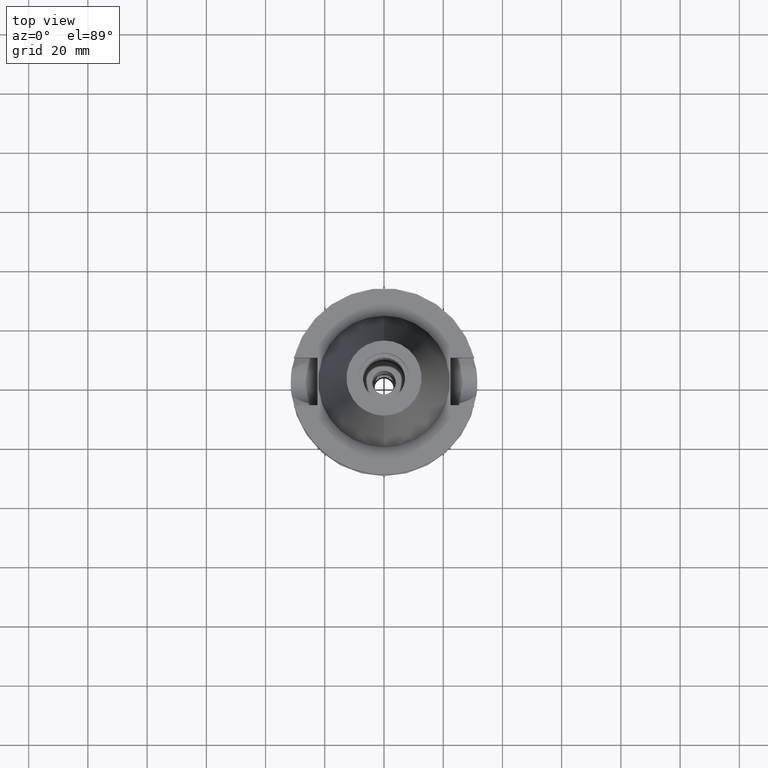
[diagram: clean part render]
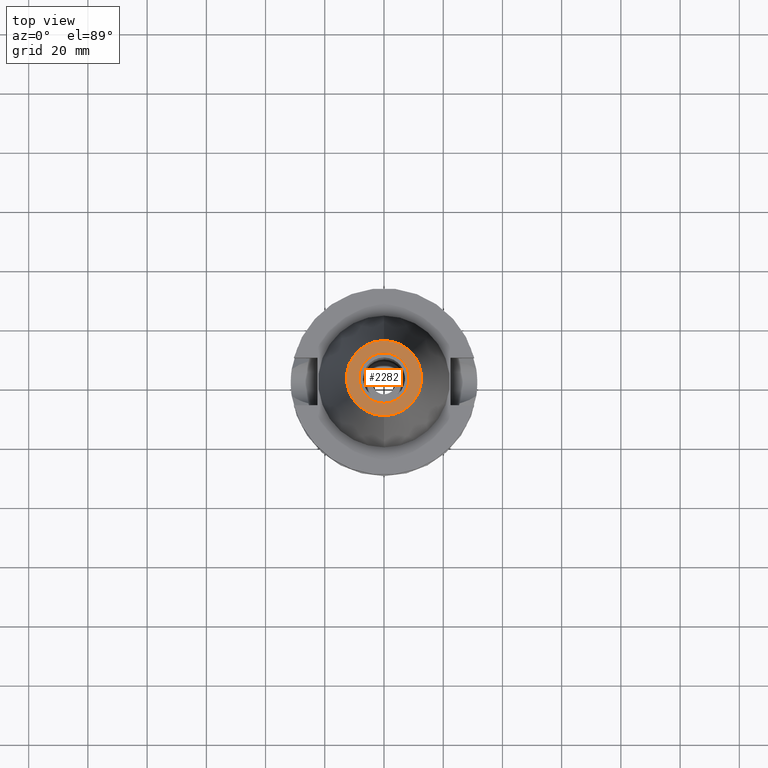
[diagram: same view with one face highlighted and labeled with its STEP entity id]
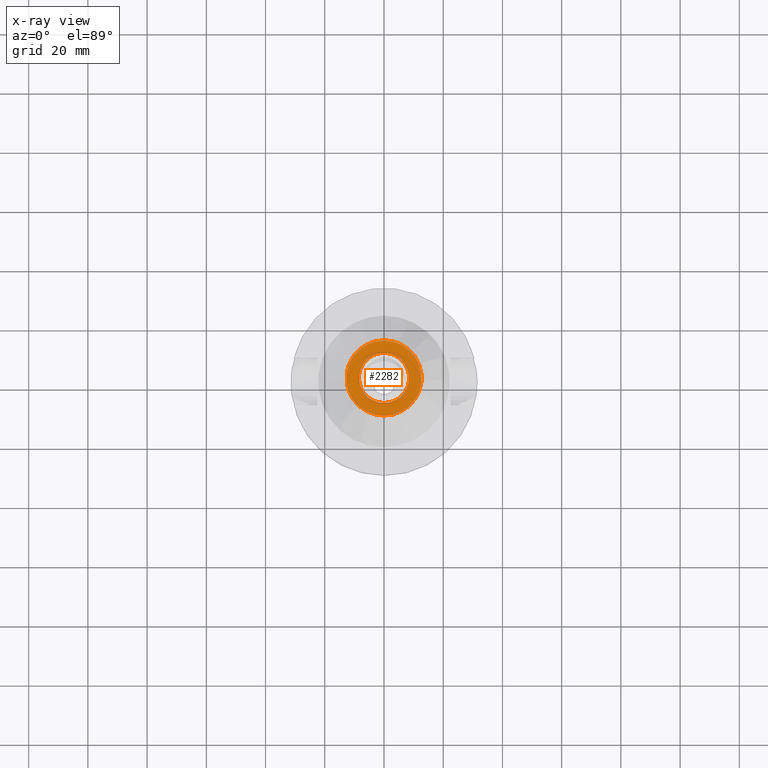
[diagram: x-ray of the same camera — body ghosted, the highlighted face saturated]
A machine part, top view. The second image highlights one B-rep face of the part: STEP entity #2282.
The next image is the same camera in x-ray: the body ghosted, the highlighted face saturated — about 0% of this face is hidden behind the body in this view.
In plain terms, the highlighted planar face has unit normal (0, 0, -1).
Its self-contained STEP definition (entity closure, byte-faithful):
#54 = CARTESIAN_POINT ( 'NONE',  ( 0.0000000000000000000, 1.625106302469000024E-14, 65.40000000000000568 ) ) ;
#65 = EDGE_CURVE ( 'NONE', #319, #702, #1711, .T. ) ;
#136 = ORIENTED_EDGE ( 'NONE', *, *, #2817, .F. ) ;
#179 = CIRCLE ( 'NONE', #1793, 8.500000000000000000 ) ;
#209 = DIRECTION ( 'NONE',  ( 0.0000000000000000000, 1.000000000000000000, 0.0000000000000000000 ) ) ;
#220 = CARTESIAN_POINT ( 'NONE',  ( 0.0000000000000000000, 12.68766899429999917, 65.40000000000000568 ) ) ;
#319 = VERTEX_POINT ( 'NONE', #220 ) ;
#346 = CARTESIAN_POINT ( 'NONE',  ( 0.0000000000000000000, -8.500000000000000000, 65.40000000000000568 ) ) ;
#668 = EDGE_LOOP ( 'NONE', ( #2809, #2469 ) ) ;
#702 = VERTEX_POINT ( 'NONE', #1121 ) ;
#738 = CARTESIAN_POINT ( 'NONE',  ( 0.0000000000000000000, 2.025565805790000122E-14, 65.40000000000000568 ) ) ;
#900 = CIRCLE ( 'NONE', #2207, 8.500000000000000000 ) ;
#1028 = EDGE_LOOP ( 'NONE', ( #1397, #136 ) ) ;
#1029 = DIRECTION ( 'NONE',  ( 0.0000000000000000000, -1.000000000000000000, 0.0000000000000000000 ) ) ;
#1121 = CARTESIAN_POINT ( 'NONE',  ( 0.0000000000000000000, -12.68766899429999917, 65.40000000000000568 ) ) ;
#1252 = AXIS2_PLACEMENT_3D ( 'NONE', #1453, #1921, #209 ) ;
#1397 = ORIENTED_EDGE ( 'NONE', *, *, #65, .F. ) ;
#1424 = DIRECTION ( 'NONE',  ( 0.0000000000000000000, 1.000000000000000000, 0.0000000000000000000 ) ) ;
#1453 = CARTESIAN_POINT ( 'NONE',  ( 0.0000000000000000000, 1.625106302469000024E-14, 65.40000000000000568 ) ) ;
#1501 = DIRECTION ( 'NONE',  ( 0.0000000000000000000, 0.0000000000000000000, -1.000000000000000000 ) ) ;
#1532 = DIRECTION ( 'NONE',  ( 0.0000000000000000000, 0.0000000000000000000, -1.000000000000000000 ) ) ;
#1583 = CARTESIAN_POINT ( 'NONE',  ( 0.0000000000000000000, 2.162848711973999723E-14, 65.40000000000000568 ) ) ;
#1632 = CARTESIAN_POINT ( 'NONE',  ( 0.0000000000000000000, 2.162848711973999723E-14, 65.40000000000000568 ) ) ;
#1697 = FACE_OUTER_BOUND ( 'NONE', #1028, .T. ) ;
#1711 = CIRCLE ( 'NONE', #1252, 12.68766899429999917 ) ;
#1737 = VERTEX_POINT ( 'NONE', #346 ) ;
#1793 = AXIS2_PLACEMENT_3D ( 'NONE', #1632, #2144, #1424 ) ;
#1921 = DIRECTION ( 'NONE',  ( 0.0000000000000000000, 0.0000000000000000000, -1.000000000000000000 ) ) ;
#2100 = VERTEX_POINT ( 'NONE', #3136 ) ;
#2102 = EDGE_CURVE ( 'NONE', #2100, #1737, #179, .T. ) ;
#2144 = DIRECTION ( 'NONE',  ( 0.0000000000000000000, 0.0000000000000000000, 1.000000000000000000 ) ) ;
#2207 = AXIS2_PLACEMENT_3D ( 'NONE', #1583, #2556, #3020 ) ;
#2282 = ADVANCED_FACE ( 'NONE', ( #1697, #2731 ), #2680, .F. ) ;
#2300 = DIRECTION ( 'NONE',  ( 0.0000000000000000000, -1.000000000000000000, 0.0000000000000000000 ) ) ;
#2384 = AXIS2_PLACEMENT_3D ( 'NONE', #738, #1532, #2300 ) ;
#2420 = EDGE_CURVE ( 'NONE', #1737, #2100, #900, .T. ) ;
#2469 = ORIENTED_EDGE ( 'NONE', *, *, #2420, .F. ) ;
#2470 = AXIS2_PLACEMENT_3D ( 'NONE', #54, #1501, #1029 ) ;
#2556 = DIRECTION ( 'NONE',  ( 0.0000000000000000000, 0.0000000000000000000, 1.000000000000000000 ) ) ;
#2680 = PLANE ( 'NONE',  #2384 ) ;
#2731 = FACE_BOUND ( 'NONE', #668, .T. ) ;
#2809 = ORIENTED_EDGE ( 'NONE', *, *, #2102, .F. ) ;
#2817 = EDGE_CURVE ( 'NONE', #702, #319, #2966, .T. ) ;
#2966 = CIRCLE ( 'NONE', #2470, 12.68766899429999917 ) ;
#3020 = DIRECTION ( 'NONE',  ( 0.0000000000000000000, -1.000000000000000000, 0.0000000000000000000 ) ) ;
#3136 = CARTESIAN_POINT ( 'NONE',  ( 0.0000000000000000000, 8.500000000000000000, 65.40000000000000568 ) ) ;